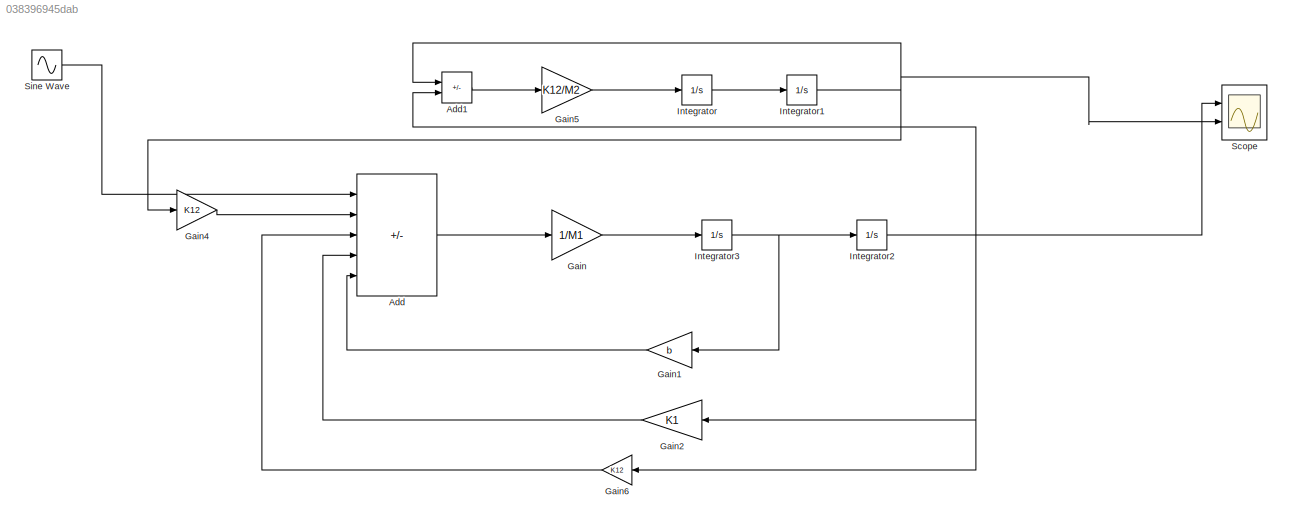
MODEL slx_038396945dab
KIND model
CONFIG AbsTol = auto
CONFIG EnableMultiTasking = off
CONFIG FixedStep = auto
CONFIG MaxStep = auto
CONFIG MinStep = auto
CONFIG RelTol = 1e-3
CONFIG SampleTimeConstraint = Unconstrained
CONFIG SolverName = VariableStepAuto
CONFIG StartTime = 0.0
CONFIG StopTime = 50.0
WORKSPACE source: mxarray member
WORKSPACE K1 = 50
WORKSPACE K12 = 200
WORKSPACE M1 = 100
WORKSPACE M2 = 60
WORKSPACE b = 50
BLOCK [Sum] Add
  IconShape = rectangular
  Inputs = ++---
  Ports = [5, 1]
BLOCK [Sum] Add1
  IconShape = rectangular
  Inputs = -+
  Ports = [2, 1]
BLOCK [Gain] Gain
  Gain = 1/M1
BLOCK [Gain] Gain1
  Gain = b
  NameLocation = top
BLOCK [Gain] Gain2
  Gain = K1
  NameLocation = top
BLOCK [Gain] Gain4
  Gain = K12
BLOCK [Gain] Gain5
  Gain = K12/M2
BLOCK [Gain] Gain6
  Gain = K12
  NameLocation = top
BLOCK [Integrator] Integrator
  Ports = [1, 1]
BLOCK [Integrator] Integrator1
  Ports = [1, 1]
BLOCK [Integrator] Integrator2
  Ports = [1, 1]
BLOCK [Integrator] Integrator3
  Ports = [1, 1]
BLOCK [Scope] Scope
  Floating = off
  NumInputPorts = 2
  Ports = [2]
  ScopeSpecificationString = Simulink.scopes.TimeScopeBlockCfg('CurrentConfiguration', extmgr.ConfigurationSet(extmgr.Configuration('Core','General UI',true),extmgr.Configuration('Core','Source UI',true),extmgr.Configuration('Sources','WiredSimulink',true),extmgr.Configuration('Visuals','Time Domain',true,'SerializedDisplays',{struct('MinYLimReal','-0.00065','MaxYLimReal','0.00123','YLabelReal','','MinYLimMag','0.00000','MaxY...<+2035ch>
BLOCK [Sin] Sine Wave
  Frequency = 10
  Ports = [0, 1]
  SampleTime = 0
LINE Add1:1 -> Gain5:1
LINE Add:1 -> Gain:1
LINE Gain1:1 -> Add:5
LINE Gain2:1 -> Add:4
LINE Gain4:1 -> Add:2
LINE Gain5:1 -> Integrator:1
LINE Gain6:1 -> Add:3
LINE Gain:1 -> Integrator3:1
NET Integrator1:1 -> Add1:1, Gain4:1, Scope:2
NET Integrator2:1 -> Add1:2, Gain2:1, Gain6:1, Scope:1
NET Integrator3:1 -> Gain1:1, Integrator2:1
LINE Integrator:1 -> Integrator1:1
LINE Sine Wave:1 -> Add:1
note: NET lines group one-source signal fan-out (src -> all destinations, sorted); 1:1 wires keep LINE
